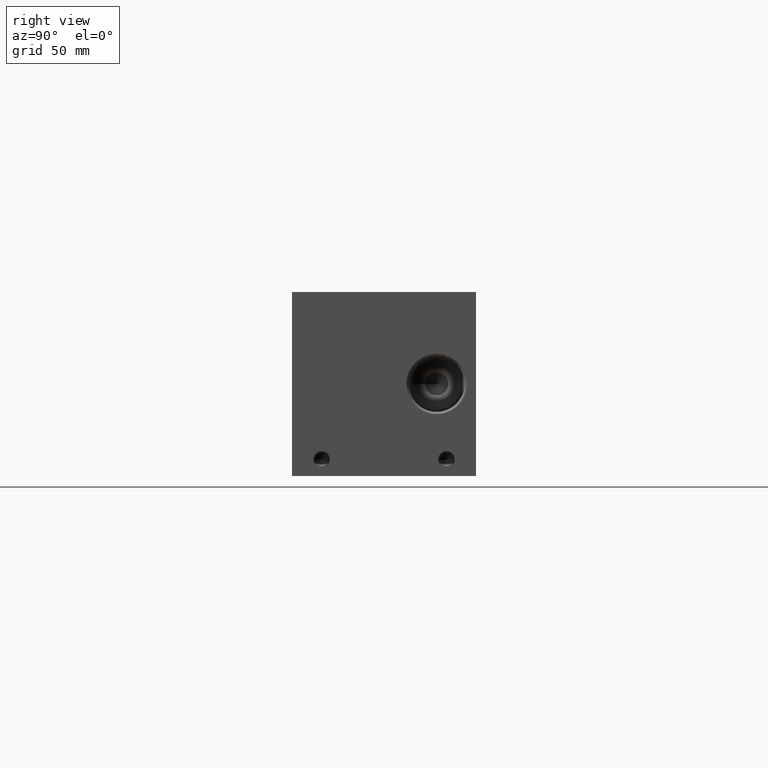
[diagram: clean part render]
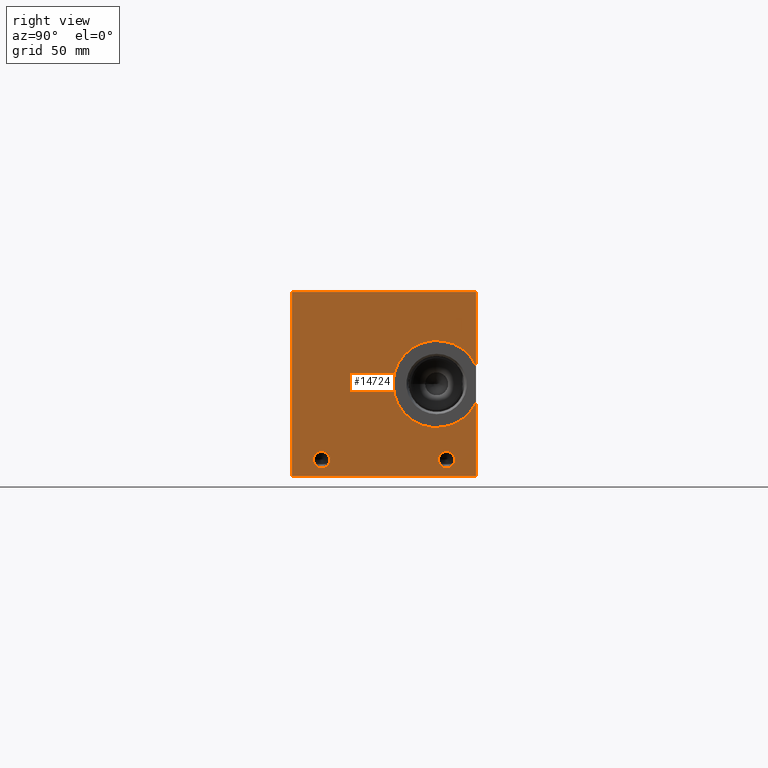
[diagram: same view with one face highlighted and labeled with its STEP entity id]
A machine part, right view. The second image highlights one B-rep face of the part: STEP entity #14724.
In plain terms, the highlighted planar face has unit normal (1, 0, 0).
Its self-contained STEP definition (entity closure, byte-faithful):
#245=CIRCLE('',#15366,21.0185);
#252=CIRCLE('',#15378,3.9624);
#253=CIRCLE('',#15379,3.9624);
#254=CIRCLE('',#15380,3.9624);
#255=CIRCLE('',#15381,3.9624);
#687=FACE_BOUND('',#2697,.T.);
#688=FACE_BOUND('',#2698,.T.);
#689=FACE_BOUND('',#2699,.T.);
#1856=FACE_OUTER_BOUND('',#2696,.T.);
#2696=EDGE_LOOP('',(#12090,#12091,#12092,#12093,#12094,#12095));
#2697=EDGE_LOOP('',(#12096,#12097,#12098,#12099,#12100,#12101,#12102,#12103));
#2698=EDGE_LOOP('',(#12104,#12105));
#2699=EDGE_LOOP('',(#12106,#12107));
#2999=LINE('',#19298,#4295);
#3003=LINE('',#19306,#4299);
#3006=LINE('',#19312,#4302);
#3009=LINE('',#19318,#4305);
#3012=LINE('',#19324,#4308);
#3015=LINE('',#19330,#4311);
#3018=LINE('',#19336,#4314);
#3021=LINE('',#19341,#4317);
#3339=LINE('',#21769,#4635);
#4107=LINE('',#24750,#5403);
#4108=LINE('',#24751,#5404);
#4109=LINE('',#24753,#5405);
#4110=LINE('',#24754,#5406);
#4295=VECTOR('',#15980,10.);
#4299=VECTOR('',#15986,10.);
#4302=VECTOR('',#15991,10.);
#4305=VECTOR('',#15996,10.);
#4308=VECTOR('',#16001,10.);
#4311=VECTOR('',#16006,10.);
#4314=VECTOR('',#16011,10.);
#4317=VECTOR('',#16016,10.);
#4635=VECTOR('',#16510,10.);
#5403=VECTOR('',#17910,10.);
#5404=VECTOR('',#17911,10.);
#5405=VECTOR('',#17912,10.);
#5406=VECTOR('',#17913,10.);
#5591=VERTEX_POINT('',#19296);
#5592=VERTEX_POINT('',#19297);
#5595=VERTEX_POINT('',#19305);
#5597=VERTEX_POINT('',#19311);
#5599=VERTEX_POINT('',#19317);
#5601=VERTEX_POINT('',#19323);
#5603=VERTEX_POINT('',#19329);
#5605=VERTEX_POINT('',#19335);
#5963=VERTEX_POINT('',#21766);
#5964=VERTEX_POINT('',#21768);
#6604=VERTEX_POINT('',#24721);
#6606=VERTEX_POINT('',#24725);
#6613=VERTEX_POINT('',#24749);
#6614=VERTEX_POINT('',#24752);
#6615=VERTEX_POINT('',#24755);
#6616=VERTEX_POINT('',#24756);
#6617=VERTEX_POINT('',#24759);
#6618=VERTEX_POINT('',#24760);
#7032=EDGE_CURVE('',#5591,#5592,#2999,.T.);
#7036=EDGE_CURVE('',#5595,#5591,#3003,.T.);
#7039=EDGE_CURVE('',#5597,#5595,#3006,.T.);
#7042=EDGE_CURVE('',#5599,#5597,#3009,.T.);
#7045=EDGE_CURVE('',#5601,#5599,#3012,.T.);
#7048=EDGE_CURVE('',#5603,#5601,#3015,.T.);
#7051=EDGE_CURVE('',#5605,#5603,#3018,.T.);
#7054=EDGE_CURVE('',#5592,#5605,#3021,.T.);
#7586=EDGE_CURVE('',#5963,#5964,#3339,.T.);
#8538=EDGE_CURVE('',#6604,#6606,#245,.T.);
#8549=EDGE_CURVE('',#6606,#6613,#4107,.T.);
#8550=EDGE_CURVE('',#5964,#6613,#4108,.T.);
#8551=EDGE_CURVE('',#5963,#6614,#4109,.T.);
#8552=EDGE_CURVE('',#6614,#6604,#4110,.T.);
#8553=EDGE_CURVE('',#6615,#6616,#252,.T.);
#8554=EDGE_CURVE('',#6616,#6615,#253,.T.);
#8555=EDGE_CURVE('',#6617,#6618,#254,.T.);
#8556=EDGE_CURVE('',#6618,#6617,#255,.T.);
#12090=ORIENTED_EDGE('',*,*,#8538,.T.);
#12091=ORIENTED_EDGE('',*,*,#8549,.T.);
#12092=ORIENTED_EDGE('',*,*,#8550,.F.);
#12093=ORIENTED_EDGE('',*,*,#7586,.F.);
#12094=ORIENTED_EDGE('',*,*,#8551,.T.);
#12095=ORIENTED_EDGE('',*,*,#8552,.T.);
#12096=ORIENTED_EDGE('',*,*,#7032,.T.);
#12097=ORIENTED_EDGE('',*,*,#7054,.T.);
#12098=ORIENTED_EDGE('',*,*,#7051,.T.);
#12099=ORIENTED_EDGE('',*,*,#7048,.T.);
#12100=ORIENTED_EDGE('',*,*,#7045,.T.);
#12101=ORIENTED_EDGE('',*,*,#7042,.T.);
#12102=ORIENTED_EDGE('',*,*,#7039,.T.);
#12103=ORIENTED_EDGE('',*,*,#7036,.T.);
#12104=ORIENTED_EDGE('',*,*,#8553,.T.);
#12105=ORIENTED_EDGE('',*,*,#8554,.T.);
#12106=ORIENTED_EDGE('',*,*,#8555,.T.);
#12107=ORIENTED_EDGE('',*,*,#8556,.T.);
#13615=PLANE('',#15377);
#14724=ADVANCED_FACE('',(#1856,#687,#688,#689),#13615,.T.);
#15366=AXIS2_PLACEMENT_3D('',#24727,#17882,#17883);
#15377=AXIS2_PLACEMENT_3D('',#24748,#17908,#17909);
#15378=AXIS2_PLACEMENT_3D('',#24757,#17914,#17915);
#15379=AXIS2_PLACEMENT_3D('',#24758,#17916,#17917);
#15380=AXIS2_PLACEMENT_3D('',#24761,#17918,#17919);
#15381=AXIS2_PLACEMENT_3D('',#24762,#17920,#17921);
#15980=DIRECTION('',(0.,-1.,0.));
#15986=DIRECTION('',(0.,0.,-1.));
#15991=DIRECTION('',(0.,-1.,0.));
#15996=DIRECTION('',(0.,0.,-1.));
#16001=DIRECTION('',(0.,1.,0.));
#16006=DIRECTION('',(0.,0.,1.));
#16011=DIRECTION('',(0.,-1.,0.));
#16016=DIRECTION('',(0.,0.,1.));
#16510=DIRECTION('',(0.,0.,1.));
#17882=DIRECTION('center_axis',(-1.,0.,0.));
#17883=DIRECTION('ref_axis',(0.,0.,-1.));
#17908=DIRECTION('center_axis',(1.,0.,0.));
#17909=DIRECTION('ref_axis',(0.,1.,0.));
#17910=DIRECTION('',(0.,0.,1.));
#17911=DIRECTION('',(0.,1.,0.));
#17912=DIRECTION('',(0.,1.,0.));
#17913=DIRECTION('',(0.,0.,1.));
#17914=DIRECTION('center_axis',(-1.,0.,0.));
#17915=DIRECTION('ref_axis',(0.,1.,0.));
#17916=DIRECTION('center_axis',(-1.,0.,0.));
#17917=DIRECTION('ref_axis',(0.,1.,0.));
#17918=DIRECTION('center_axis',(-1.,0.,0.));
#17919=DIRECTION('ref_axis',(0.,1.,0.));
#17920=DIRECTION('center_axis',(-1.,0.,0.));
#17921=DIRECTION('ref_axis',(0.,1.,0.));
#19296=CARTESIAN_POINT('',(330.2,82.344165271453,69.85));
#19297=CARTESIAN_POINT('',(330.2,81.5002430799135,69.85));
#19298=CARTESIAN_POINT('',(330.2,41.1720826357265,69.85));
#19305=CARTESIAN_POINT('',(330.2,82.344165271453,75.4487033194816));
#19306=CARTESIAN_POINT('',(330.2,82.344165271453,37.7243516597408));
#19311=CARTESIAN_POINT('',(330.2,84.4745542183881,75.4487033194816));
#19312=CARTESIAN_POINT('',(330.2,42.237277109194,75.4487033194816));
#19317=CARTESIAN_POINT('',(330.2,84.4745542183881,76.1999999046326));
#19318=CARTESIAN_POINT('',(330.2,84.4745542183881,38.0999999523163));
#19323=CARTESIAN_POINT('',(330.2,79.3698541329784,76.1999999046326));
#19324=CARTESIAN_POINT('',(330.2,39.6849270664892,76.1999999046326));
#19329=CARTESIAN_POINT('',(330.2,79.3698541329784,75.4487033194816));
#19330=CARTESIAN_POINT('',(330.2,79.3698541329784,37.7243516597408));
#19335=CARTESIAN_POINT('',(330.2,81.5002430799135,75.4487033194816));
#19336=CARTESIAN_POINT('',(330.2,40.7501215399568,75.4487033194816));
#19341=CARTESIAN_POINT('',(330.2,81.5002430799135,34.925));
#21766=CARTESIAN_POINT('',(330.2,0.,0.));
#21768=CARTESIAN_POINT('',(330.2,0.,88.9));
#21769=CARTESIAN_POINT('',(330.2,0.,0.));
#24721=CARTESIAN_POINT('',(330.2,88.9,35.5688490469985));
#24725=CARTESIAN_POINT('',(330.2,88.9,53.3311509530015));
#24727=CARTESIAN_POINT('Origin',(330.2,69.85,44.45));
#24748=CARTESIAN_POINT('Origin',(330.2,0.,0.));
#24749=CARTESIAN_POINT('',(330.2,88.9,88.9));
#24750=CARTESIAN_POINT('',(330.2,88.9,0.));
#24751=CARTESIAN_POINT('',(330.2,0.,88.9));
#24752=CARTESIAN_POINT('',(330.2,88.9,0.));
#24753=CARTESIAN_POINT('',(330.2,0.,0.));
#24754=CARTESIAN_POINT('',(330.2,88.9,0.));
#24755=CARTESIAN_POINT('',(330.2,78.5876,7.9248));
#24756=CARTESIAN_POINT('',(330.2,70.6628,7.9248));
#24757=CARTESIAN_POINT('Origin',(330.2,74.6252,7.9248));
#24758=CARTESIAN_POINT('Origin',(330.2,74.6252,7.9248));
#24759=CARTESIAN_POINT('',(330.2,18.2372,7.9248));
#24760=CARTESIAN_POINT('',(330.2,10.3124,7.9248));
#24761=CARTESIAN_POINT('Origin',(330.2,14.2748,7.9248));
#24762=CARTESIAN_POINT('Origin',(330.2,14.2748,7.9248));